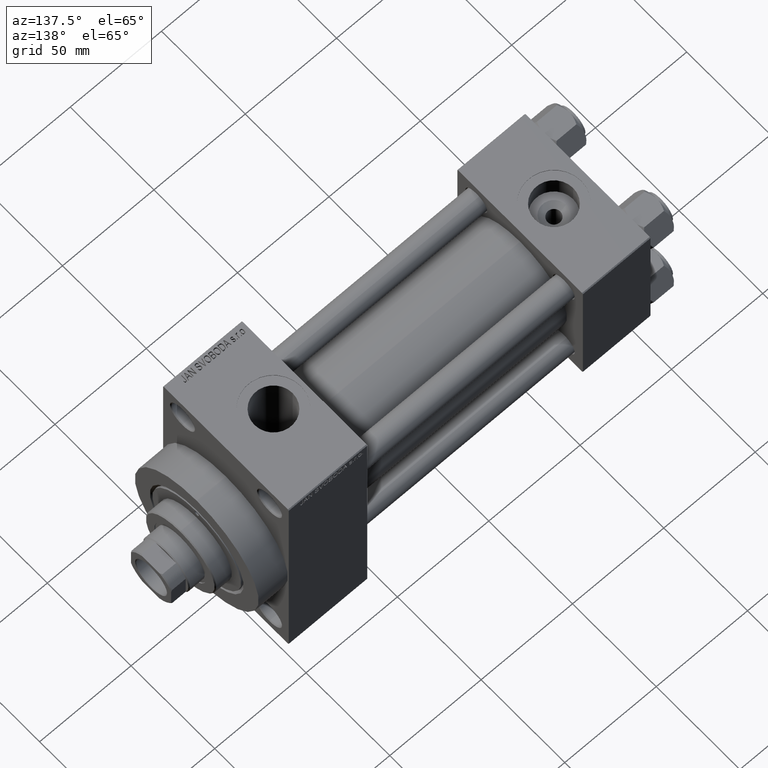
[diagram: clean part render]
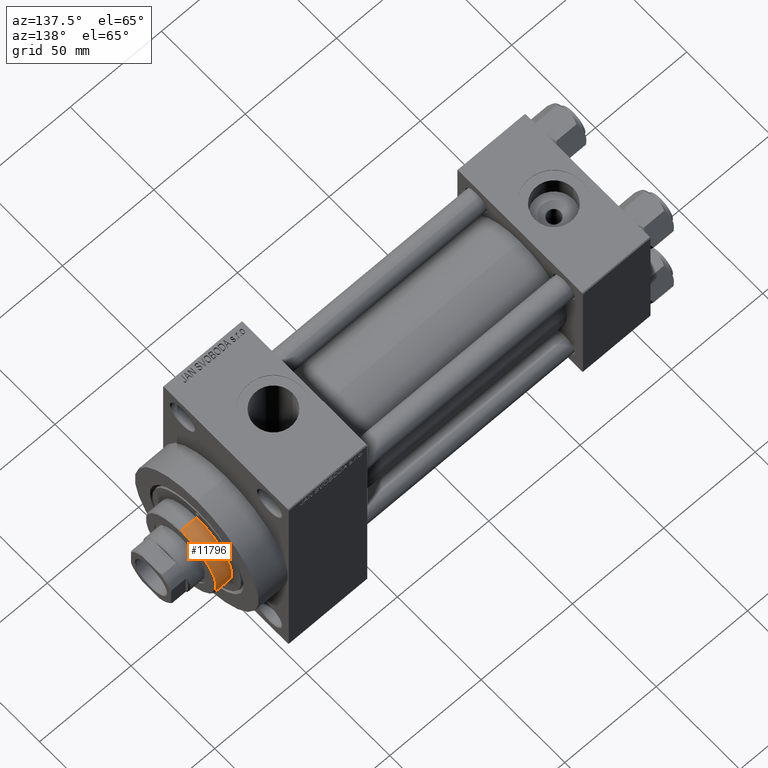
[diagram: same view with one face highlighted and labeled with its STEP entity id]
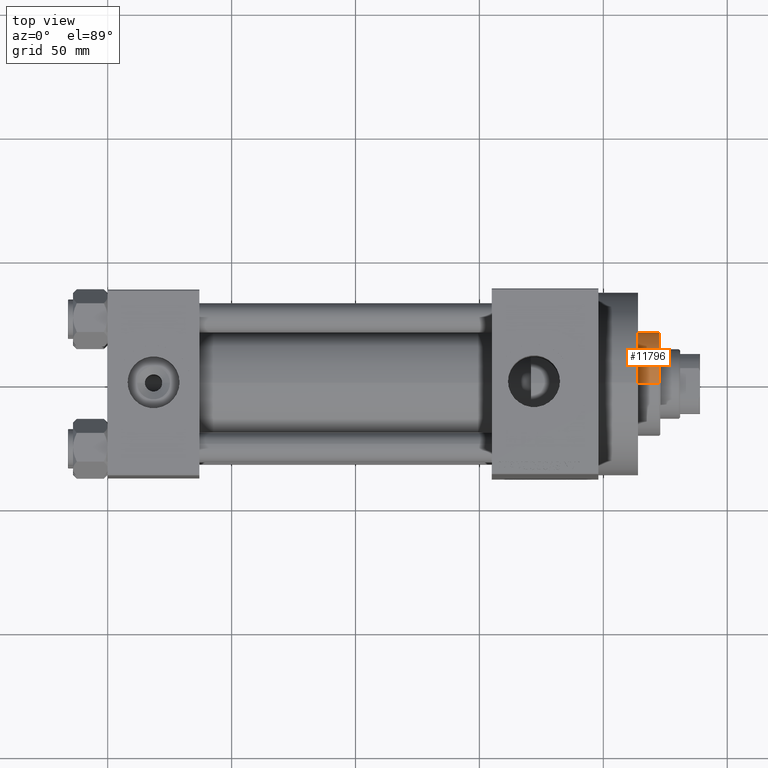
[diagram: same view with one face highlighted and labeled with its STEP entity id]
A machine part, auxiliary view. The second image highlights one B-rep face of the part: STEP entity #11796.
A second angle (top view) of the same face is appended — the face is thin or edge-on in the first view.
In plain terms, the highlighted cylindrical surface (partial cylindrical patch) has radius 21 mm, axis along (-1, 0, 0).
Its self-contained STEP definition (entity closure, byte-faithful):
#195 = EDGE_CURVE ( 'NONE', #32596, #18834, #33922, .T. ) ;
#831 = EDGE_LOOP ( 'NONE', ( #2509, #2238, #33139, #3797 ) ) ;
#2238 = ORIENTED_EDGE ( 'NONE', *, *, #34469, .T. ) ;
#2509 = ORIENTED_EDGE ( 'NONE', *, *, #44102, .F. ) ;
#3553 = VECTOR ( 'NONE', #28088, 1000.000000000000000 ) ;
#3558 = CARTESIAN_POINT ( 'NONE',  ( 21.00000000000000000, 2.571758278209441661E-15, 51.75999999999999801 ) ) ;
#3797 = ORIENTED_EDGE ( 'NONE', *, *, #15346, .T. ) ;
#4775 = CARTESIAN_POINT ( 'NONE',  ( 21.00000000000000000, 2.571758278209441661E-15, 43.25999999999999801 ) ) ;
#6580 = DIRECTION ( 'NONE',  ( -0.000000000000000000, -0.000000000000000000, -1.000000000000000000 ) ) ;
#6681 = CARTESIAN_POINT ( 'NONE',  ( -21.00000000000000000, 0.000000000000000000, 51.75999999999999801 ) ) ;
#6722 = LINE ( 'NONE', #35760, #3553 ) ;
#6818 = DIRECTION ( 'NONE',  ( -1.000000000000000000, 0.000000000000000000, 0.000000000000000000 ) ) ;
#8760 = VERTEX_POINT ( 'NONE', #3558 ) ;
#11796 = ADVANCED_FACE ( 'NONE', ( #36100 ), #39708, .T. ) ;
#12551 = DIRECTION ( 'NONE',  ( 0.000000000000000000, 0.000000000000000000, -1.000000000000000000 ) ) ;
#13652 = VERTEX_POINT ( 'NONE', #4775 ) ;
#14961 = DIRECTION ( 'NONE',  ( -0.000000000000000000, -0.000000000000000000, -1.000000000000000000 ) ) ;
#15346 = EDGE_CURVE ( 'NONE', #18834, #13652, #43131, .T. ) ;
#17098 = AXIS2_PLACEMENT_3D ( 'NONE', #32750, #28912, #28196 ) ;
#18834 = VERTEX_POINT ( 'NONE', #23485 ) ;
#19094 = CIRCLE ( 'NONE', #22953, 21.00000000000000000 ) ;
#19158 = VECTOR ( 'NONE', #14961, 1000.000000000000000 ) ;
#19248 = AXIS2_PLACEMENT_3D ( 'NONE', #43047, #6580, #6818 ) ;
#22866 = DIRECTION ( 'NONE',  ( 1.000000000000000000, 0.000000000000000000, 0.000000000000000000 ) ) ;
#22872 = CARTESIAN_POINT ( 'NONE',  ( -21.00000000000000000, 0.000000000000000000, 52.25999999999999801 ) ) ;
#22953 = AXIS2_PLACEMENT_3D ( 'NONE', #45636, #12551, #22866 ) ;
#23485 = CARTESIAN_POINT ( 'NONE',  ( -21.00000000000000000, 0.000000000000000000, 43.25999999999999801 ) ) ;
#28088 = DIRECTION ( 'NONE',  ( -0.000000000000000000, -0.000000000000000000, -1.000000000000000000 ) ) ;
#28196 = DIRECTION ( 'NONE',  ( 1.000000000000000000, 0.000000000000000000, 0.000000000000000000 ) ) ;
#28912 = DIRECTION ( 'NONE',  ( 0.000000000000000000, 0.000000000000000000, 1.000000000000000000 ) ) ;
#32596 = VERTEX_POINT ( 'NONE', #6681 ) ;
#32750 = CARTESIAN_POINT ( 'NONE',  ( 0.000000000000000000, 0.000000000000000000, 43.25999999999999801 ) ) ;
#33139 = ORIENTED_EDGE ( 'NONE', *, *, #195, .T. ) ;
#33922 = LINE ( 'NONE', #22872, #19158 ) ;
#34469 = EDGE_CURVE ( 'NONE', #8760, #32596, #19094, .T. ) ;
#35760 = CARTESIAN_POINT ( 'NONE',  ( 21.00000000000000000, 2.571758278209441661E-15, 52.25999999999999801 ) ) ;
#36100 = FACE_OUTER_BOUND ( 'NONE', #831, .T. ) ;
#39708 = CYLINDRICAL_SURFACE ( 'NONE', #19248, 21.00000000000000000 ) ;
#43047 = CARTESIAN_POINT ( 'NONE',  ( 0.000000000000000000, 0.000000000000000000, 52.25999999999999801 ) ) ;
#43131 = CIRCLE ( 'NONE', #17098, 21.00000000000000000 ) ;
#44102 = EDGE_CURVE ( 'NONE', #8760, #13652, #6722, .T. ) ;
#45636 = CARTESIAN_POINT ( 'NONE',  ( 0.000000000000000000, 0.000000000000000000, 51.75999999999999801 ) ) ;